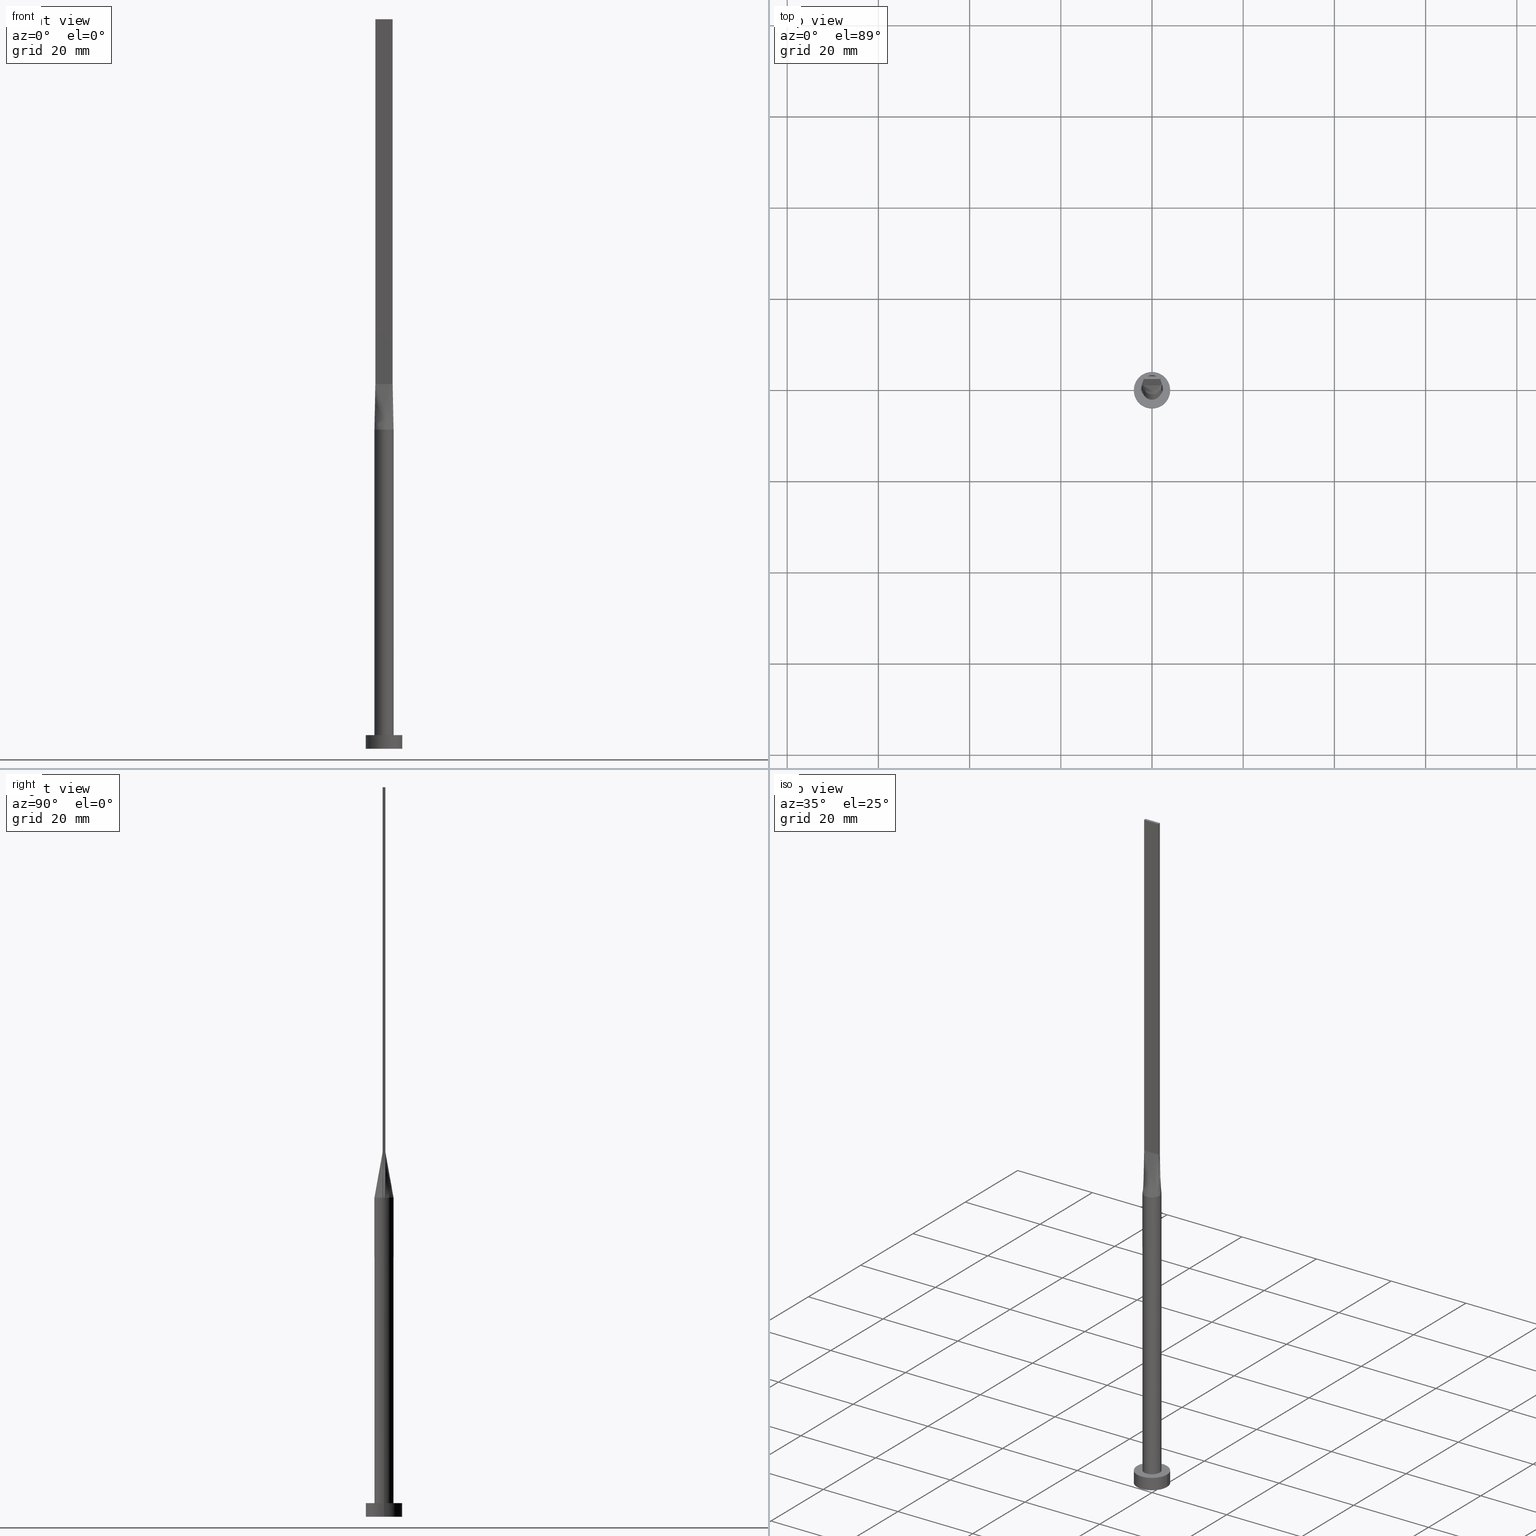
[diagram: canonical four-view strip — front | top / right | iso, engineering-drawing reading convention]
A machine part, canonical four-view strip (front | top / right | iso — engineering-drawing reading convention). The complete STEP part file that produces these views, byte-faithful:
ISO-10303-21;
HEADER;
FILE_DESCRIPTION (( 'STEP AP203' ),
    '1' );
FILE_NAME ('afc1.STEP',
    '2026-02-12T09:04:50',
    ( '' ),
    ( '' ),
    'SwSTEP 2.0',
    'SolidWorks 2019',
    '' );
FILE_SCHEMA (( 'CONFIG_CONTROL_DESIGN' ));
ENDSEC;

DATA;
#1 = LOCAL_TIME ( 10, 4, 50.00000000000000000, #389 ) ;
#2 = CARTESIAN_POINT ( 'NONE',  ( 0.2990728642939452508, -2.100000000000000533, 70.00000000000002842 ) ) ;
#3 = EDGE_CURVE ( 'NONE', #276, #480, #293, .T. ) ;
#4 = CARTESIAN_POINT ( 'NONE',  ( -2.074302227191044956, 0.3275214042933224934, 70.00000000000000000 ) ) ;
#5 = CARTESIAN_POINT ( 'NONE',  ( 0.6333333333333335258, -0.2999999999999996003, 79.99999999999998579 ) ) ;
#6 = CARTESIAN_POINT ( 'NONE',  ( -1.692271541701912296, 1.268928319070362631, 70.00000000000001421 ) ) ;
#7 = DIRECTION ( 'NONE',  ( 0.000000000000000000, 0.000000000000000000, 1.000000000000000000 ) ) ;
#8 = CARTESIAN_POINT ( 'NONE',  ( 4.000000000000000000, 4.898587196589412829E-16, 3.000000000000000000 ) ) ;
#9 = CARTESIAN_POINT ( 'NONE',  ( -1.899999999999999689, 0.3000000000000002109, 80.00000000000000000 ) ) ;
#10 = PERSON_AND_ORGANIZATION ( #350, #429 ) ;
#11 = CC_DESIGN_APPROVAL ( #174, ( #273 ) ) ;
#12 = AXIS2_PLACEMENT_3D ( 'NONE', #478, #296, #492 ) ;
#13 = CARTESIAN_POINT ( 'NONE',  ( -2.047342767731585855, 0.4982646475365663519, 70.00000000000001421 ) ) ;
#14 = CC_DESIGN_PERSON_AND_ORGANIZATION_ASSIGNMENT ( #454, #511, ( #343 ) ) ;
#15 = PERSON_AND_ORGANIZATION_ROLE ( 'creator' ) ;
#16 = B_SPLINE_SURFACE_WITH_KNOTS ( 'NONE', 3, 1, ( 
 ( #383, #160 ),
 ( #341, #558 ),
 ( #164, #150 ),
 ( #252, #345 ),
 ( #81, #449 ),
 ( #545, #86 ),
 ( #177, #136 ),
 ( #407, #395 ),
 ( #221, #498 ),
 ( #2, #500 ),
 ( #503, #355 ),
 ( #507, #5 ),
 ( #89, #580 ),
 ( #401, #315 ),
 ( #265, #260 ),
 ( #543, #443 ),
 ( #452, #219 ),
 ( #92, #47 ) ),
 .UNSPECIFIED., .F., .F., .F.,
 ( 4, 2, 2, 2, 2, 2, 2, 2, 4 ),
 ( 2, 2 ),
 ( 0.000000000000000000, 0.1249999999999999445, 0.2499999999999999445, 0.3749999999999999445, 0.5000000000000000000, 0.6249999999999998890, 0.7499999999999998890, 0.8749999999999997780, 1.000000000000000000 ),
 ( 0.000000000000000000, 1.000000000000000000 ),
 .UNSPECIFIED. ) ;
#17 = CARTESIAN_POINT ( 'NONE',  ( -2.074302227191044956, -0.3275214042933223824, 70.00000000000000000 ) ) ;
#18 =( LENGTH_UNIT ( ) NAMED_UNIT ( * ) SI_UNIT ( .MILLI., .METRE. ) );
#19 = PERSON_AND_ORGANIZATION ( #350, #429 ) ;
#20 = DIRECTION ( 'NONE',  ( -0.01742750958084848464, 0.002751712039081373896, 0.9998443428807622935 ) ) ;
#21 = ORIENTED_EDGE ( 'NONE', *, *, #145, .F. ) ;
#22 = CALENDAR_DATE ( 2026, 12, 2 ) ;
#23 = VERTEX_POINT ( 'NONE', #35 ) ;
#24 = ADVANCED_FACE ( 'NONE', ( #203 ), #80, .F. ) ;
#25 = CARTESIAN_POINT ( 'NONE',  ( -1.899999999999999689, 0.3000000000000002109, 160.0000000000000000 ) ) ;
#26 = AXIS2_PLACEMENT_3D ( 'NONE', #268, #51, #227 ) ;
#27 = PERSON_AND_ORGANIZATION ( #350, #429 ) ;
#28 = DIRECTION ( 'NONE',  ( 0.000000000000000000, 0.000000000000000000, 1.000000000000000000 ) ) ;
#29 = ORIENTED_EDGE ( 'NONE', *, *, #348, .F. ) ;
#30 = CARTESIAN_POINT ( 'NONE',  ( 0.000000000000000000, 0.000000000000000000, 3.000000000000000000 ) ) ;
#31 = EDGE_LOOP ( 'NONE', ( #385, #121, #21, #469 ) ) ;
#32 = LINE ( 'NONE', #72, #205 ) ;
#33 = ORIENTED_EDGE ( 'NONE', *, *, #217, .T. ) ;
#34 = VECTOR ( 'NONE', #456, 1000.000000000000000 ) ;
#35 = CARTESIAN_POINT ( 'NONE',  ( 2.074471112824316510, 0.3275477247839024275, 70.00000000000000000 ) ) ;
#36 = CARTESIAN_POINT ( 'NONE',  ( 0.6333333333333336368, 0.3000000000000001554, 79.99999999999998579 ) ) ;
#37 = ORIENTED_EDGE ( 'NONE', *, *, #457, .F. ) ;
#38 = CARTESIAN_POINT ( 'NONE',  ( 1.899999999999999689, 0.3000000000000002109, 160.0000000000000000 ) ) ;
#39 = ORIENTED_EDGE ( 'NONE', *, *, #202, .T. ) ;
#40 = DIRECTION ( 'NONE',  ( -0.01742750958084839444, -0.002751712039081324456, -0.9998443428807622935 ) ) ;
#41 = CC_DESIGN_PERSON_AND_ORGANIZATION_ASSIGNMENT ( #19, #187, ( #198 ) ) ;
#42 = FACE_OUTER_BOUND ( 'NONE', #534, .T. ) ;
#43 = VECTOR ( 'NONE', #45, 1000.000000000000000 ) ;
#44 = VERTEX_POINT ( 'NONE', #382 ) ;
#45 = DIRECTION ( 'NONE',  ( -0.000000000000000000, -0.000000000000000000, -1.000000000000000000 ) ) ;
#46 = CARTESIAN_POINT ( 'NONE',  ( 2.099842767731585624, 0.1098417832277423373, 70.00000000000000000 ) ) ;
#47 = CARTESIAN_POINT ( 'NONE',  ( 1.899999999999999023, -0.2999999999999997669, 80.00000000000000000 ) ) ;
#48 = ADVANCED_FACE ( 'NONE', ( #390 ), #287, .T. ) ;
#49 = CYLINDRICAL_SURFACE ( 'NONE', #439, 2.100000000000000089 ) ;
#50 = FACE_OUTER_BOUND ( 'NONE', #104, .T. ) ;
#51 = DIRECTION ( 'NONE',  ( 0.000000000000000000, 0.000000000000000000, 1.000000000000000000 ) ) ;
#52 = CARTESIAN_POINT ( 'NONE',  ( -1.819451111325472326, 1.069832718648841885, 70.00000000000001421 ) ) ;
#53 = APPROVAL_DATE_TIME ( #451, #174 ) ;
#54 = CARTESIAN_POINT ( 'NONE',  ( 0.000000000000000000, 0.000000000000000000, 3.000000000000000000 ) ) ;
#55 = EDGE_CURVE ( 'NONE', #118, #44, #514, .T. ) ;
#56 = CARTESIAN_POINT ( 'NONE',  ( -0.5970064165420507774, 2.033566071616263127, 70.00000000000000000 ) ) ;
#57 = CARTESIAN_POINT ( 'NONE',  ( 0.000000000000000000, 0.000000000000000000, 3.000000000000000000 ) ) ;
#58 = ORIENTED_EDGE ( 'NONE', *, *, #61, .T. ) ;
#59 = CARTESIAN_POINT ( 'NONE',  ( -2.074302227191044956, 0.3275214042933229375, 70.00000000000000000 ) ) ;
#60 = PERSON_AND_ORGANIZATION_ROLE ( 'classification_officer' ) ;
#61 = EDGE_CURVE ( 'NONE', #188, #44, #272, .T. ) ;
#62 = ORIENTED_EDGE ( 'NONE', *, *, #387, .T. ) ;
#63 = CARTESIAN_POINT ( 'NONE',  ( 0.000000000000000000, 0.000000000000000000, 70.00000000000000000 ) ) ;
#64 = DIRECTION ( 'NONE',  ( 0.000000000000000000, 0.000000000000000000, 1.000000000000000000 ) ) ;
#65 = EDGE_LOOP ( 'NONE', ( #368, #375, #144, #58 ) ) ;
#66 = DIRECTION ( 'NONE',  ( 0.000000000000000000, 0.000000000000000000, 1.000000000000000000 ) ) ;
#67 = VECTOR ( 'NONE', #20, 1000.000000000000114 ) ;
#68 = CARTESIAN_POINT ( 'NONE',  ( 1.899999999999999689, 0.3000000000000002109, 80.00000000000000000 ) ) ;
#69 = PERSON_AND_ORGANIZATION ( #350, #429 ) ;
#70 = ORIENTED_EDGE ( 'NONE', *, *, #283, .F. ) ;
#71 = APPROVAL ( #151, 'NEUR�EN�' ) ;
#72 = CARTESIAN_POINT ( 'NONE',  ( 1.899999999999999689, 0.3000000000000002109, 160.0000000000000000 ) ) ;
#73 = DATE_AND_TIME ( #213, #1 ) ;
#74 = VERTEX_POINT ( 'NONE', #274 ) ;
#75 = LOCAL_TIME ( 10, 4, 50.00000000000000000, #364 ) ;
#76 = ORIENTED_EDGE ( 'NONE', *, *, #414, .F. ) ;
#77 = CARTESIAN_POINT ( 'NONE',  ( -1.899999999999999689, 0.3000000000000002109, 160.0000000000000000 ) ) ;
#78 = CIRCLE ( 'NONE', #402, 4.000000000000000000 ) ;
#79 = ADVANCED_FACE ( 'NONE', ( #50 ), #472, .T. ) ;
#80 = PLANE ( 'NONE',  #12 ) ;
#81 = CARTESIAN_POINT ( 'NONE',  ( -1.692271541701912296, -1.268928319070361965, 70.00000000000001421 ) ) ;
#82 = ORIENTED_EDGE ( 'NONE', *, *, #202, .F. ) ;
#83 = CARTESIAN_POINT ( 'NONE',  ( -2.099921383865792635, -5.254633567926592411E-16, 70.00000000000000000 ) ) ;
#84 = CARTESIAN_POINT ( 'NONE',  ( 1.996565546919327527, 0.6845950695482651005, 70.00000000000001421 ) ) ;
#85 = CARTESIAN_POINT ( 'NONE',  ( 2.099842767731585624, -0.1098417832277428230, 70.00000000000000000 ) ) ;
#86 = CARTESIAN_POINT ( 'NONE',  ( -0.7916666666666660745, -0.2999999999999995448, 79.99999999999998579 ) ) ;
#87 = CARTESIAN_POINT ( 'NONE',  ( 1.342614810400549086, 1.634425746458369799, 70.00000000000001421 ) ) ;
#88 = CARTESIAN_POINT ( 'NONE',  ( 0.000000000000000000, 0.000000000000000000, 0.000000000000000000 ) ) ;
#89 = CARTESIAN_POINT ( 'NONE',  ( 1.342614810400548864, -1.634425746458370021, 70.00000000000002842 ) ) ;
#90 = DIRECTION ( 'NONE',  ( 0.000000000000000000, 0.000000000000000000, 1.000000000000000000 ) ) ;
#91 = DIRECTION ( 'NONE',  ( 1.000000000000000000, 0.000000000000000000, 0.000000000000000000 ) ) ;
#92 = CARTESIAN_POINT ( 'NONE',  ( 2.074302227191044956, -0.3275214042933231595, 70.00000000000000000 ) ) ;
#93 = AXIS2_PLACEMENT_3D ( 'NONE', #54, #64, #522 ) ;
#94 = FACE_OUTER_BOUND ( 'NONE', #461, .T. ) ;
#95 = CARTESIAN_POINT ( 'NONE',  ( -1.899999999999999689, 0.3000000000000002109, 80.00000000000000000 ) ) ;
#96 = COORDINATED_UNIVERSAL_TIME_OFFSET ( 1, 0, .AHEAD. ) ;
#97 = FACE_BOUND ( 'NONE', #560, .T. ) ;
#98 = APPROVAL ( #336, 'NEUR�EN�' ) ;
#99 = APPLICATION_CONTEXT ( 'configuration controlled 3d designs of mechanical parts and assemblies' ) ;
#100 = CARTESIAN_POINT ( 'NONE',  ( 1.692271541701912296, 1.268928319070362187, 70.00000000000000000 ) ) ;
#101 =( NAMED_UNIT ( * ) PLANE_ANGLE_UNIT ( ) SI_UNIT ( $, .RADIAN. ) );
#102 = CYLINDRICAL_SURFACE ( 'NONE', #458, 4.000000000000000000 ) ;
#103 = CARTESIAN_POINT ( 'NONE',  ( 0.000000000000000000, 0.000000000000000000, 0.000000000000000000 ) ) ;
#104 = EDGE_LOOP ( 'NONE', ( #436, #153, #82, #433, #523 ) ) ;
#105 = CLOSED_SHELL ( 'NONE', ( #369, #179, #524, #361, #537, #559, #321, #48, #79, #426, #501, #224, #405, #24, #576 ) ) ;
#106 = CARTESIAN_POINT ( 'NONE',  ( 2.074471112824316510, 0.3275477247839024275, 70.00000000000000000 ) ) ;
#107 = EDGE_CURVE ( 'NONE', #23, #489, #223, .T. ) ;
#108 = ORIENTED_EDGE ( 'NONE', *, *, #234, .F. ) ;
#109 = CARTESIAN_POINT ( 'NONE',  ( -1.987151113595522656, -0.3137607021466609636, 75.00000000000001421 ) ) ;
#110 = CALENDAR_DATE ( 2026, 12, 2 ) ;
#111 = VERTEX_POINT ( 'NONE', #225 ) ;
#112 = CARTESIAN_POINT ( 'NONE',  ( 0.000000000000000000, 0.000000000000000000, 70.00000000000000000 ) ) ;
#113 = LINE ( 'NONE', #152, #185 ) ;
#114 = B_SPLINE_SURFACE_WITH_KNOTS ( 'NONE', 3, 1, ( 
 ( #294, #68 ),
 ( #495, #216 ),
 ( #84, #573 ),
 ( #353, #262 ),
 ( #394, #220 ),
 ( #87, #261 ),
 ( #173, #36 ),
 ( #206, #347 ),
 ( #384, #569 ),
 ( #532, #528 ),
 ( #128, #396 ),
 ( #342, #299 ),
 ( #308, #491 ),
 ( #581, #303 ),
 ( #485, #211 ),
 ( #257, #446 ),
 ( #222, #400 ),
 ( #4, #95 ) ),
 .UNSPECIFIED., .F., .F., .F.,
 ( 4, 2, 2, 2, 2, 2, 2, 2, 4 ),
 ( 2, 2 ),
 ( 0.000000000000000000, 0.1249999999999999722, 0.2500000000000000000, 0.3750000000000000000, 0.5000000000000000000, 0.6250000000000000000, 0.7500000000000000000, 0.8750000000000000000, 1.000000000000000000 ),
 ( 0.000000000000000000, 1.000000000000000000 ),
 .UNSPECIFIED. ) ;
#115 = VERTEX_POINT ( 'NONE', #230 ) ;
#116 = VECTOR ( 'NONE', #183, 1000.000000000000000 ) ;
#117 = DIRECTION ( 'NONE',  ( 1.000000000000000000, 0.000000000000000000, 0.000000000000000000 ) ) ;
#118 = VERTEX_POINT ( 'NONE', #363 ) ;
#119 = EDGE_CURVE ( 'NONE', #489, #351, #403, .T. ) ;
#120 = DIRECTION ( 'NONE',  ( -0.000000000000000000, -0.000000000000000000, -1.000000000000000000 ) ) ;
#121 = ORIENTED_EDGE ( 'NONE', *, *, #61, .F. ) ;
#122 = FACE_OUTER_BOUND ( 'NONE', #377, .T. ) ;
#123 = CC_DESIGN_SECURITY_CLASSIFICATION ( #139, ( #198 ) ) ;
#124 = ORIENTED_EDGE ( 'NONE', *, *, #125, .T. ) ;
#125 = EDGE_CURVE ( 'NONE', #351, #427, #357, .T. ) ;
#126 = VECTOR ( 'NONE', #285, 1000.000000000000000 ) ;
#127 = DIRECTION ( 'NONE',  ( 1.000000000000000000, 0.000000000000000000, 0.000000000000000000 ) ) ;
#128 = CARTESIAN_POINT ( 'NONE',  ( -0.5970064165420507774, 2.033566071616263127, 70.00000000000000000 ) ) ;
#129 = CARTESIAN_POINT ( 'NONE',  ( -1.899999999999999911, -0.2999999999999994893, 80.00000000000000000 ) ) ;
#130 = CYLINDRICAL_SURFACE ( 'NONE', #297, 4.000000000000000000 ) ;
#131 = CARTESIAN_POINT ( 'NONE',  ( 1.899999999999999689, -0.1999999999999998168, 79.99999999999998579 ) ) ;
#132 = APPROVAL_PERSON_ORGANIZATION ( #552, #71, #142 ) ;
#133 = AXIS2_PLACEMENT_3D ( 'NONE', #228, #90, #406 ) ;
#134 = DIRECTION ( 'NONE',  ( 1.000000000000000000, 0.000000000000000000, 0.000000000000000000 ) ) ;
#135 = VECTOR ( 'NONE', #388, 1000.000000000000000 ) ;
#136 = CARTESIAN_POINT ( 'NONE',  ( -0.6333333333333327486, -0.2999999999999996003, 79.99999999999998579 ) ) ;
#137 = CARTESIAN_POINT ( 'NONE',  ( 1.987151113595522212, 0.3137607021466614077, 75.00000000000001421 ) ) ;
#138 = EDGE_CURVE ( 'NONE', #23, #459, #277, .T. ) ;
#139 = SECURITY_CLASSIFICATION ( '', '', #240 ) ;
#140 = CARTESIAN_POINT ( 'NONE',  ( -2.099842767731585624, -0.1098417832277421985, 70.00000000000000000 ) ) ;
#141 = CARTESIAN_POINT ( 'NONE',  ( -2.099842767731585624, 0.1098417832277427397, 70.00000000000000000 ) ) ;
#142 = APPROVAL_ROLE ( '' ) ;
#143 = CALENDAR_DATE ( 2026, 12, 2 ) ;
#144 = ORIENTED_EDGE ( 'NONE', *, *, #156, .F. ) ;
#145 = EDGE_CURVE ( 'NONE', #111, #188, #232, .T. ) ;
#146 = CARTESIAN_POINT ( 'NONE',  ( -1.987151113595522212, 0.3137607021466613522, 75.00000000000001421 ) ) ;
#147 = DIRECTION ( 'NONE',  ( 1.000000000000000000, 0.000000000000000000, -0.000000000000000000 ) ) ;
#148 = ORIENTED_EDGE ( 'NONE', *, *, #314, .F. ) ;
#149 = VECTOR ( 'NONE', #441, 1000.000000000000000 ) ;
#150 = CARTESIAN_POINT ( 'NONE',  ( -1.583333333333333037, -0.2999999999999994893, 80.00000000000000000 ) ) ;
#151 = APPROVAL_STATUS ( 'not_yet_approved' ) ;
#152 = CARTESIAN_POINT ( 'NONE',  ( -1.899999999999999911, -0.2999999999999994893, 160.0000000000000000 ) ) ;
#153 = ORIENTED_EDGE ( 'NONE', *, *, #161, .T. ) ;
#154 = PLANE ( 'NONE',  #412 ) ;
#155 = CARTESIAN_POINT ( 'NONE',  ( 0.000000000000000000, 0.000000000000000000, 3.000000000000000000 ) ) ;
#156 = EDGE_CURVE ( 'NONE', #188, #289, #269, .T. ) ;
#157 = ORIENTED_EDGE ( 'NONE', *, *, #493, .F. ) ;
#158 = CARTESIAN_POINT ( 'NONE',  ( 2.074302227191044956, 0.3275214042933226599, 70.00000000000000000 ) ) ;
#159 = ORIENTED_EDGE ( 'NONE', *, *, #305, .T. ) ;
#160 = CARTESIAN_POINT ( 'NONE',  ( -1.899999999999999911, -0.2999999999999994893, 80.00000000000000000 ) ) ;
#161 = EDGE_CURVE ( 'NONE', #276, #207, #372, .T. ) ;
#162 = ORIENTED_EDGE ( 'NONE', *, *, #55, .F. ) ;
#163 = ORIENTED_EDGE ( 'NONE', *, *, #457, .T. ) ;
#164 = CARTESIAN_POINT ( 'NONE',  ( -1.996565546919327971, -0.6845950695482642123, 70.00000000000000000 ) ) ;
#165 = CARTESIAN_POINT ( 'NONE',  ( -1.899999999999999689, 0.3000000000000002109, 160.0000000000000000 ) ) ;
#166 = SHAPE_DEFINITION_REPRESENTATION ( #197, #404 ) ;
#167 = ORIENTED_EDGE ( 'NONE', *, *, #305, .F. ) ;
#168 = DIRECTION ( 'NONE',  ( 0.000000000000000000, 0.000000000000000000, 1.000000000000000000 ) ) ;
#169 = CARTESIAN_POINT ( 'NONE',  ( 0.000000000000000000, 0.000000000000000000, 70.00000000000000000 ) ) ;
#170 = PLANE ( 'NONE',  #467 ) ;
#171 = CARTESIAN_POINT ( 'NONE',  ( 2.074302227191044956, -0.3275214042933231595, 70.00000000000000000 ) ) ;
#172 = DIRECTION ( 'NONE',  ( 1.000000000000000000, -7.993605777301127091E-15, 0.000000000000000000 ) ) ;
#173 = CARTESIAN_POINT ( 'NONE',  ( 1.119115561862284558, 1.799829988698611105, 69.99999999999998579 ) ) ;
#174 = APPROVAL ( #506, 'NEUR�EN�' ) ;
#175 = FACE_OUTER_BOUND ( 'NONE', #527, .T. ) ;
#176 = CIRCLE ( 'NONE', #200, 2.100000000000000089 ) ;
#177 = CARTESIAN_POINT ( 'NONE',  ( -1.119115561862284558, -1.799829988698610439, 69.99999999999998579 ) ) ;
#178 = APPLICATION_CONTEXT ( 'configuration controlled 3d designs of mechanical parts and assemblies' ) ;
#179 = ADVANCED_FACE ( 'NONE', ( #94 ), #102, .T. ) ;
#180 = CARTESIAN_POINT ( 'NONE',  ( -1.119115561862284558, 1.799829988698611327, 69.99999999999998579 ) ) ;
#181 = DIRECTION ( 'NONE',  ( -1.000000000000000000, 0.000000000000000000, 0.000000000000000000 ) ) ;
#182 = CARTESIAN_POINT ( 'NONE',  ( -1.899999999999999689, 0.3000000000000002109, 80.00000000000000000 ) ) ;
#183 = DIRECTION ( 'NONE',  ( -0.000000000000000000, -0.000000000000000000, -1.000000000000000000 ) ) ;
#184 = CARTESIAN_POINT ( 'NONE',  ( -2.091329254218072364, -0.2196835664554846468, 70.00000000000000000 ) ) ;
#185 = VECTOR ( 'NONE', #339, 1000.000000000000000 ) ;
#186 = CARTESIAN_POINT ( 'NONE',  ( 1.342614810400549086, 1.634425746458369799, 70.00000000000001421 ) ) ;
#187 = PERSON_AND_ORGANIZATION_ROLE ( 'creator' ) ;
#188 = VERTEX_POINT ( 'NONE', #462 ) ;
#189 = DATE_TIME_ROLE ( 'creation_date' ) ;
#190 = EDGE_LOOP ( 'NONE', ( #163, #284, #393, #483 ) ) ;
#191 = FACE_OUTER_BOUND ( 'NONE', #530, .T. ) ;
#192 = ORIENTED_EDGE ( 'NONE', *, *, #234, .T. ) ;
#193 = EDGE_CURVE ( 'NONE', #480, #214, #468, .T. ) ;
#194 = DIRECTION ( 'NONE',  ( 0.000000000000000000, 0.000000000000000000, 1.000000000000000000 ) ) ;
#195 = ORIENTED_EDGE ( 'NONE', *, *, #145, .T. ) ;
#196 = LINE ( 'NONE', #292, #542 ) ;
#197 = PRODUCT_DEFINITION_SHAPE ( 'NONE', 'NONE',  #273 ) ;
#198 = PRODUCT_DEFINITION_FORMATION_WITH_SPECIFIED_SOURCE ( 'LIBOVOLN�', '', #343, .NOT_KNOWN. ) ;
#199 = ORIENTED_EDGE ( 'NONE', *, *, #328, .F. ) ;
#200 = AXIS2_PLACEMENT_3D ( 'NONE', #112, #168, #386 ) ;
#201 = DIRECTION ( 'NONE',  ( 1.000000000000000000, 0.000000000000000000, 0.000000000000000000 ) ) ;
#202 = EDGE_CURVE ( 'NONE', #427, #207, #253, .T. ) ;
#203 = FACE_OUTER_BOUND ( 'NONE', #65, .T. ) ;
#204 = DIRECTION ( 'NONE',  ( 1.000000000000000000, 0.000000000000000000, 0.000000000000000000 ) ) ;
#205 = VECTOR ( 'NONE', #423, 1000.000000000000000 ) ;
#206 = CARTESIAN_POINT ( 'NONE',  ( 0.5970064165420508884, 2.033566071616262683, 69.99999999999998579 ) ) ;
#207 = VERTEX_POINT ( 'NONE', #422 ) ;
#208 = CARTESIAN_POINT ( 'NONE',  ( -4.000000000000000000, 0.000000000000000000, 3.000000000000000000 ) ) ;
#209 = CARTESIAN_POINT ( 'NONE',  ( -1.899999999999999689, 0.3000000000000002109, 80.00000000000000000 ) ) ;
#210 = CARTESIAN_POINT ( 'NONE',  ( 1.899999999999999911, -0.2999999999999997669, 80.00000000000000000 ) ) ;
#211 = CARTESIAN_POINT ( 'NONE',  ( -1.266666666666666163, 0.3000000000000002109, 79.99999999999998579 ) ) ;
#212 = DIRECTION ( 'NONE',  ( 0.000000000000000000, -1.000000000000000000, 0.000000000000000000 ) ) ;
#213 = CALENDAR_DATE ( 2026, 12, 2 ) ;
#214 = VERTEX_POINT ( 'NONE', #391 ) ;
#215 = DIRECTION ( 'NONE',  ( 1.000000000000000000, 0.000000000000000000, 0.000000000000000000 ) ) ;
#216 = CARTESIAN_POINT ( 'NONE',  ( 1.741666666666666474, 0.3000000000000002109, 79.99999999999998579 ) ) ;
#217 = EDGE_CURVE ( 'NONE', #74, #214, #349, .T. ) ;
#218 = CARTESIAN_POINT ( 'NONE',  ( 1.899999999999999467, 0.1000000000000001166, 79.99999999999998579 ) ) ;
#219 = CARTESIAN_POINT ( 'NONE',  ( 1.741666666666665586, -0.2999999999999997113, 79.99999999999998579 ) ) ;
#220 = CARTESIAN_POINT ( 'NONE',  ( 1.108333333333333393, 0.3000000000000001554, 79.99999999999998579 ) ) ;
#221 = CARTESIAN_POINT ( 'NONE',  ( -0.2990728642939464721, -2.100000000000000977, 70.00000000000004263 ) ) ;
#222 = CARTESIAN_POINT ( 'NONE',  ( -2.047342767731585855, 0.4982646475365663519, 70.00000000000001421 ) ) ;
#223 = B_SPLINE_CURVE_WITH_KNOTS ( 'NONE', 3,
 ( #106, #319, #508, #237, #100, #186, #453, #411, #408, #271, #56, #180, #324, #6, #52, #513, #13, #551 ),
 .UNSPECIFIED., .F., .F.,
 ( 4, 2, 2, 2, 2, 2, 2, 2, 4 ),
 ( 0.000000000000000000, 0.1249999999999999722, 0.2500000000000000000, 0.3750000000000000000, 0.5000000000000000000, 0.6250000000000000000, 0.7500000000000000000, 0.8750000000000000000, 1.000000000000000000 ),
 .UNSPECIFIED. ) ;
#224 = ADVANCED_FACE ( 'NONE', ( #122 ), #434, .F. ) ;
#225 = CARTESIAN_POINT ( 'NONE',  ( -1.899999999999999911, -0.2999999999999994893, 160.0000000000000000 ) ) ;
#226 = CARTESIAN_POINT ( 'NONE',  ( 0.000000000000000000, 0.000000000000000000, 160.0000000000000000 ) ) ;
#227 = DIRECTION ( 'NONE',  ( 1.000000000000000000, 0.000000000000000000, 0.000000000000000000 ) ) ;
#228 = CARTESIAN_POINT ( 'NONE',  ( 0.000000000000000000, 0.000000000000000000, 70.00000000000000000 ) ) ;
#229 = DIRECTION ( 'NONE',  ( -0.000000000000000000, -0.000000000000000000, -1.000000000000000000 ) ) ;
#230 = CARTESIAN_POINT ( 'NONE',  ( 4.000000000000000000, 4.898587196589412829E-16, 0.000000000000000000 ) ) ;
#231 =( NAMED_UNIT ( * ) SI_UNIT ( $, .STERADIAN. ) SOLID_ANGLE_UNIT ( ) );
#232 = LINE ( 'NONE', #417, #34 ) ;
#233 = DATE_AND_TIME ( #110, #563 ) ;
#234 = EDGE_CURVE ( 'NONE', #74, #23, #362, .T. ) ;
#235 = AXIS2_PLACEMENT_3D ( 'NONE', #241, #28, #117 ) ;
#236 = VERTEX_POINT ( 'NONE', #579 ) ;
#237 = CARTESIAN_POINT ( 'NONE',  ( 1.819451111325471215, 1.069832718648841885, 69.99999999999998579 ) ) ;
#238 = ORIENTED_EDGE ( 'NONE', *, *, #193, .T. ) ;
#239 = CARTESIAN_POINT ( 'NONE',  ( 0.000000000000000000, 0.000000000000000000, 3.000000000000000000 ) ) ;
#240 = SECURITY_CLASSIFICATION_LEVEL ( 'unclassified' ) ;
#241 = CARTESIAN_POINT ( 'NONE',  ( 0.000000000000000000, 0.000000000000000000, 70.00000000000000000 ) ) ;
#242 = EDGE_CURVE ( 'NONE', #289, #475, #575, .T. ) ;
#243 = LINE ( 'NONE', #208, #149 ) ;
#244 = ORIENTED_EDGE ( 'NONE', *, *, #107, .F. ) ;
#245 = APPROVAL_DATE_TIME ( #73, #98 ) ;
#246 = ORIENTED_EDGE ( 'NONE', *, *, #470, .F. ) ;
#247 = CARTESIAN_POINT ( 'NONE',  ( 4.000000000000000000, 4.898587196589412829E-16, 3.000000000000000000 ) ) ;
#248 = CC_DESIGN_DATE_AND_TIME_ASSIGNMENT ( #278, #189, ( #273 ) ) ;
#249 = CC_DESIGN_APPROVAL ( #71, ( #198 ) ) ;
#250 = ORIENTED_EDGE ( 'NONE', *, *, #255, .T. ) ;
#251 = CARTESIAN_POINT ( 'NONE',  ( 1.899999999999999467, 0.2000000000000001499, 79.99999999999998579 ) ) ;
#252 = CARTESIAN_POINT ( 'NONE',  ( -1.819451111325472548, -1.069832718648841663, 69.99999999999998579 ) ) ;
#253 = LINE ( 'NONE', #109, #290 ) ;
#254 = DIRECTION ( 'NONE',  ( 0.000000000000000000, 0.000000000000000000, 1.000000000000000000 ) ) ;
#255 = EDGE_CURVE ( 'NONE', #475, #111, #572, .T. ) ;
#256 = AXIS2_PLACEMENT_3D ( 'NONE', #226, #270, #147 ) ;
#257 = CARTESIAN_POINT ( 'NONE',  ( -1.996565546919327527, 0.6845950695482648785, 70.00000000000001421 ) ) ;
#258 = DIRECTION ( 'NONE',  ( -1.000000000000000000, 0.000000000000000000, 0.000000000000000000 ) ) ;
#259 = CARTESIAN_POINT ( 'NONE',  ( 2.091329254218072364, -0.2196835664554854239, 70.00000000000000000 ) ) ;
#260 = CARTESIAN_POINT ( 'NONE',  ( 1.266666666666665941, -0.2999999999999997113, 79.99999999999998579 ) ) ;
#261 = CARTESIAN_POINT ( 'NONE',  ( 0.7916666666666668517, 0.3000000000000001554, 79.99999999999998579 ) ) ;
#262 = CARTESIAN_POINT ( 'NONE',  ( 1.266666666666666829, 0.3000000000000002109, 79.99999999999998579 ) ) ;
#263 = DIRECTION ( 'NONE',  ( 0.000000000000000000, 0.000000000000000000, 1.000000000000000000 ) ) ;
#264 = EDGE_CURVE ( 'NONE', #207, #118, #176, .T. ) ;
#265 = CARTESIAN_POINT ( 'NONE',  ( 1.819451111325472104, -1.069832718648842107, 70.00000000000000000 ) ) ;
#266 = CARTESIAN_POINT ( 'NONE',  ( -1.899999999999999911, -0.2999999999999994338, 80.00000000000000000 ) ) ;
#267 = CIRCLE ( 'NONE', #26, 4.000000000000000000 ) ;
#268 = CARTESIAN_POINT ( 'NONE',  ( 0.000000000000000000, 0.000000000000000000, 3.000000000000000000 ) ) ;
#269 = LINE ( 'NONE', #510, #494 ) ;
#270 = DIRECTION ( 'NONE',  ( 0.000000000000000000, 0.000000000000000000, 1.000000000000000000 ) ) ;
#271 = CARTESIAN_POINT ( 'NONE',  ( -0.2990728642939458615, 2.100000000000000089, 70.00000000000001421 ) ) ;
#272 = LINE ( 'NONE', #275, #116 ) ;
#273 = PRODUCT_DEFINITION ( 'NEZN�M�', '', #198, #487 ) ;
#274 = CARTESIAN_POINT ( 'NONE',  ( 2.099921383865792635, 5.174786140116233847E-16, 70.00000000000000000 ) ) ;
#275 = CARTESIAN_POINT ( 'NONE',  ( 1.899999999999999023, -0.2999999999999997669, 160.0000000000000000 ) ) ;
#276 = VERTEX_POINT ( 'NONE', #83 ) ;
#277 = LINE ( 'NONE', #137, #409 ) ;
#278 = DATE_AND_TIME ( #143, #75 ) ;
#279 = UNCERTAINTY_MEASURE_WITH_UNIT (LENGTH_MEASURE( 1.000000000000000082E-05 ), #18, 'distance_accuracy_value', 'NONE');
#280 = CARTESIAN_POINT ( 'NONE',  ( 1.987151113595522212, -0.3137607021466614632, 75.00000000000001421 ) ) ;
#281 = ORIENTED_EDGE ( 'NONE', *, *, #348, .T. ) ;
#282 = PERSON_AND_ORGANIZATION_ROLE ( 'design_supplier' ) ;
#283 = EDGE_CURVE ( 'NONE', #118, #74, #529, .T. ) ;
#284 = ORIENTED_EDGE ( 'NONE', *, *, #387, .F. ) ;
#285 = DIRECTION ( 'NONE',  ( -1.000000000000000000, 0.000000000000000000, 0.000000000000000000 ) ) ;
#286 = CYLINDRICAL_SURFACE ( 'NONE', #444, 2.100000000000000089 ) ;
#287 = B_SPLINE_SURFACE_WITH_KNOTS ( 'NONE', 3, 1, ( 
 ( #171, #210 ),
 ( #259, #131 ),
 ( #85, #442 ),
 ( #46, #218 ),
 ( #565, #251 ),
 ( #158, #365 ) ),
 .UNSPECIFIED., .F., .F., .F.,
 ( 4, 2, 4 ),
 ( 2, 2 ),
 ( 0.000000000000000000, 0.5000000000000000000, 1.000000000000000000 ),
 ( 0.000000000000000000, 1.000000000000000000 ),
 .UNSPECIFIED. ) ;
#288 = APPROVAL_PERSON_ORGANIZATION ( #548, #174, #410 ) ;
#289 = VERTEX_POINT ( 'NONE', #484 ) ;
#290 = VECTOR ( 'NONE', #40, 1000.000000000000114 ) ;
#291 = CARTESIAN_POINT ( 'NONE',  ( 0.000000000000000000, 0.000000000000000000, 70.00000000000000000 ) ) ;
#292 = CARTESIAN_POINT ( 'NONE',  ( 1.899999999999999689, 0.3000000000000002109, 80.00000000000000000 ) ) ;
#293 = LINE ( 'NONE', #578, #318 ) ;
#294 = CARTESIAN_POINT ( 'NONE',  ( 2.074302227191044956, 0.3275214042933228820, 70.00000000000000000 ) ) ;
#295 = APPROVAL_PERSON_ORGANIZATION ( #69, #98, #482 ) ;
#296 = DIRECTION ( 'NONE',  ( -1.000000000000000000, 1.084202172485504434E-15, 0.000000000000000000 ) ) ;
#297 = AXIS2_PLACEMENT_3D ( 'NONE', #397, #309, #258 ) ;
#298 = ORIENTED_EDGE ( 'NONE', *, *, #328, .T. ) ;
#299 = CARTESIAN_POINT ( 'NONE',  ( -0.6333333333333326376, 0.3000000000000001554, 79.99999999999998579 ) ) ;
#300 = DIRECTION ( 'NONE',  ( -3.614007241618348278E-16, 1.000000000000000000, -0.000000000000000000 ) ) ;
#301 = ORIENTED_EDGE ( 'NONE', *, *, #255, .F. ) ;
#302 = CARTESIAN_POINT ( 'NONE',  ( 0.000000000000000000, 0.000000000000000000, 70.00000000000000000 ) ) ;
#303 = CARTESIAN_POINT ( 'NONE',  ( -1.108333333333332726, 0.3000000000000002109, 79.99999999999998579 ) ) ;
#304 = DIRECTION ( 'NONE',  ( 1.000000000000000000, -7.132909029509898176E-17, 0.000000000000000000 ) ) ;
#305 = EDGE_CURVE ( 'NONE', #236, #517, #243, .T. ) ;
#306 = EDGE_LOOP ( 'NONE', ( #464, #148 ) ) ;
#307 = DIRECTION ( 'NONE',  ( 1.000000000000000000, -3.614007241618350743E-16, 0.000000000000000000 ) ) ;
#308 = CARTESIAN_POINT ( 'NONE',  ( -1.342614810400549308, 1.634425746458370021, 70.00000000000002842 ) ) ;
#309 = DIRECTION ( 'NONE',  ( -0.000000000000000000, -0.000000000000000000, -1.000000000000000000 ) ) ;
#310 = ORIENTED_EDGE ( 'NONE', *, *, #314, .T. ) ;
#311 = DIRECTION ( 'NONE',  ( 1.000000000000000000, 0.000000000000000000, -0.000000000000000000 ) ) ;
#312 = AXIS2_PLACEMENT_3D ( 'NONE', #63, #490, #215 ) ;
#313 = CARTESIAN_POINT ( 'NONE',  ( -4.000000000000000000, 0.000000000000000000, 0.000000000000000000 ) ) ;
#314 = EDGE_CURVE ( 'NONE', #115, #517, #477, .T. ) ;
#315 = CARTESIAN_POINT ( 'NONE',  ( 1.108333333333332948, -0.2999999999999996558, 79.99999999999998579 ) ) ;
#316 =( GEOMETRIC_REPRESENTATION_CONTEXT ( 3 ) GLOBAL_UNCERTAINTY_ASSIGNED_CONTEXT ( ( #279 ) ) GLOBAL_UNIT_ASSIGNED_CONTEXT ( ( #18, #101, #231 ) ) REPRESENTATION_CONTEXT ( 'NONE', 'WORKASPACE' ) );
#317 = DIRECTION ( 'NONE',  ( 1.084202172485504434E-15, 1.000000000000000000, 0.000000000000000000 ) ) ;
#318 = VECTOR ( 'NONE', #120, 1000.000000000000000 ) ;
#319 = CARTESIAN_POINT ( 'NONE',  ( 2.047342767731584967, 0.4982646475365660188, 70.00000000000001421 ) ) ;
#320 = APPLICATION_PROTOCOL_DEFINITION ( 'international standard', 'config_control_design', 1994, #178 ) ;
#321 = ADVANCED_FACE ( 'NONE', ( #191 ), #16, .T. ) ;
#322 = CARTESIAN_POINT ( 'NONE',  ( -1.899999999999999689, 0.3000000000000002109, 80.00000000000000000 ) ) ;
#323 = ORIENTED_EDGE ( 'NONE', *, *, #138, .T. ) ;
#324 = CARTESIAN_POINT ( 'NONE',  ( -1.342614810400549308, 1.634425746458370021, 70.00000000000002842 ) ) ;
#325 = AXIS2_PLACEMENT_3D ( 'NONE', #88, #263, #311 ) ;
#326 = AXIS2_PLACEMENT_3D ( 'NONE', #302, #254, #172 ) ;
#327 = ORIENTED_EDGE ( 'NONE', *, *, #476, .F. ) ;
#328 = EDGE_CURVE ( 'NONE', #236, #419, #267, .T. ) ;
#329 = VECTOR ( 'NONE', #304, 1000.000000000000000 ) ;
#330 = ORIENTED_EDGE ( 'NONE', *, *, #107, .T. ) ;
#331 = LINE ( 'NONE', #474, #557 ) ;
#332 = ORIENTED_EDGE ( 'NONE', *, *, #3, .F. ) ;
#333 = CC_DESIGN_APPROVAL ( #98, ( #139 ) ) ;
#334 = ORIENTED_EDGE ( 'NONE', *, *, #379, .F. ) ;
#335 = VECTOR ( 'NONE', #549, 1000.000000000000114 ) ;
#336 = APPROVAL_STATUS ( 'not_yet_approved' ) ;
#337 = EDGE_LOOP ( 'NONE', ( #562, #192, #323, #425, #162 ) ) ;
#338 = PRODUCT_RELATED_PRODUCT_CATEGORY ( 'detail', '', ( #343 ) ) ;
#339 = DIRECTION ( 'NONE',  ( -0.000000000000000000, -0.000000000000000000, -1.000000000000000000 ) ) ;
#340 = EDGE_LOOP ( 'NONE', ( #108, #33, #519, #332, #76, #244 ) ) ;
#341 = CARTESIAN_POINT ( 'NONE',  ( -2.047342767731585411, -0.4982646475365654637, 70.00000000000000000 ) ) ;
#342 = CARTESIAN_POINT ( 'NONE',  ( -1.119115561862284558, 1.799829988698611327, 69.99999999999998579 ) ) ;
#343 = PRODUCT ( 'afc1', 'afc1', '', ( #415 ) ) ;
#344 = ORIENTED_EDGE ( 'NONE', *, *, #217, .F. ) ;
#345 = CARTESIAN_POINT ( 'NONE',  ( -1.266666666666666385, -0.2999999999999994893, 79.99999999999998579 ) ) ;
#346 = VECTOR ( 'NONE', #229, 1000.000000000000000 ) ;
#347 = CARTESIAN_POINT ( 'NONE',  ( 0.3166666666666671515, 0.3000000000000001554, 79.99999999999998579 ) ) ;
#348 = EDGE_CURVE ( 'NONE', #419, #115, #352, .T. ) ;
#349 = LINE ( 'NONE', #535, #43 ) ;
#350 = PERSON ( 'NEUR�EN�', 'NEUR�EN�', 'NEUR�EN�', ('NEUR�EN�'), ('NEUR�EN�'), ('NEUR�EN�') ) ;
#351 = VERTEX_POINT ( 'NONE', #182 ) ;
#352 = LINE ( 'NONE', #8, #346 ) ;
#353 = CARTESIAN_POINT ( 'NONE',  ( 1.819451111325471215, 1.069832718648841885, 69.99999999999998579 ) ) ;
#354 = FACE_OUTER_BOUND ( 'NONE', #306, .T. ) ;
#355 = CARTESIAN_POINT ( 'NONE',  ( 0.3166666666666672625, -0.2999999999999996003, 79.99999999999998579 ) ) ;
#356 = CIRCLE ( 'NONE', #431, 2.100000000000000089 ) ;
#357 = LINE ( 'NONE', #322, #392 ) ;
#358 = FACE_OUTER_BOUND ( 'NONE', #380, .T. ) ;
#359 = LOCAL_TIME ( 10, 4, 50.00000000000000000, #418 ) ;
#360 = CARTESIAN_POINT ( 'NONE',  ( -1.899999999999999689, -0.1999999999999994837, 79.99999999999998579 ) ) ;
#361 = ADVANCED_FACE ( 'NONE', ( #97, #175 ), #539, .T. ) ;
#362 = CIRCLE ( 'NONE', #312, 2.100000000000000089 ) ;
#363 = CARTESIAN_POINT ( 'NONE',  ( 2.074492141291045755, -0.3275508996892426139, 70.00000000000000000 ) ) ;
#364 = COORDINATED_UNIVERSAL_TIME_OFFSET ( 1, 0, .AHEAD. ) ;
#365 = CARTESIAN_POINT ( 'NONE',  ( 1.899999999999999689, 0.3000000000000002109, 80.00000000000000000 ) ) ;
#366 = CARTESIAN_POINT ( 'NONE',  ( -1.899999999999999467, 0.1000000000000002831, 79.99999999999998579 ) ) ;
#367 = PERSON_AND_ORGANIZATION ( #350, #429 ) ;
#368 = ORIENTED_EDGE ( 'NONE', *, *, #432, .T. ) ;
#369 = ADVANCED_FACE ( 'NONE', ( #561 ), #286, .T. ) ;
#370 = AXIS2_PLACEMENT_3D ( 'NONE', #103, #7, #91 ) ;
#371 = DIRECTION ( 'NONE',  ( 7.132909029509899409E-17, 1.000000000000000000, -0.000000000000000000 ) ) ;
#372 = CIRCLE ( 'NONE', #133, 2.100000000000000089 ) ;
#373 = EDGE_LOOP ( 'NONE', ( #29, #199, #159, #521 ) ) ;
#374 = DIRECTION ( 'NONE',  ( -1.000000000000000000, 0.000000000000000000, 0.000000000000000000 ) ) ;
#375 = ORIENTED_EDGE ( 'NONE', *, *, #398, .F. ) ;
#376 = DIRECTION ( 'NONE',  ( 1.000000000000000000, 0.000000000000000000, 0.000000000000000000 ) ) ;
#377 = EDGE_LOOP ( 'NONE', ( #124, #334, #301, #62 ) ) ;
#378 = DIRECTION ( 'NONE',  ( 0.000000000000000000, 0.000000000000000000, 1.000000000000000000 ) ) ;
#379 = EDGE_CURVE ( 'NONE', #111, #427, #113, .T. ) ;
#380 = EDGE_LOOP ( 'NONE', ( #440, #250, #195, #556 ) ) ;
#381 = VECTOR ( 'NONE', #465, 1000.000000000000000 ) ;
#382 = CARTESIAN_POINT ( 'NONE',  ( 1.899999999999999023, -0.2999999999999997669, 80.00000000000000000 ) ) ;
#383 = CARTESIAN_POINT ( 'NONE',  ( -2.074302227191044956, -0.3275214042933223824, 70.00000000000000000 ) ) ;
#384 = CARTESIAN_POINT ( 'NONE',  ( 0.2990728642939458615, 2.100000000000000089, 70.00000000000002842 ) ) ;
#385 = ORIENTED_EDGE ( 'NONE', *, *, #476, .T. ) ;
#386 = DIRECTION ( 'NONE',  ( 1.000000000000000000, 0.000000000000000000, 0.000000000000000000 ) ) ;
#387 = EDGE_CURVE ( 'NONE', #475, #351, #331, .T. ) ;
#388 = DIRECTION ( 'NONE',  ( -1.000000000000000000, -0.000000000000000000, -0.000000000000000000 ) ) ;
#389 = COORDINATED_UNIVERSAL_TIME_OFFSET ( 1, 0, .AHEAD. ) ;
#390 = FACE_OUTER_BOUND ( 'NONE', #337, .T. ) ;
#391 = CARTESIAN_POINT ( 'NONE',  ( 2.100000000000000089, 2.571758278209441957E-16, 3.000000000000000000 ) ) ;
#392 = VECTOR ( 'NONE', #546, 1000.000000000000000 ) ;
#393 = ORIENTED_EDGE ( 'NONE', *, *, #242, .F. ) ;
#394 = CARTESIAN_POINT ( 'NONE',  ( 1.692271541701912296, 1.268928319070362187, 70.00000000000000000 ) ) ;
#395 = CARTESIAN_POINT ( 'NONE',  ( -0.3166666666666658192, -0.2999999999999996003, 79.99999999999998579 ) ) ;
#396 = CARTESIAN_POINT ( 'NONE',  ( -0.3166666666666660412, 0.3000000000000001554, 79.99999999999998579 ) ) ;
#397 = CARTESIAN_POINT ( 'NONE',  ( 0.000000000000000000, 0.000000000000000000, 3.000000000000000000 ) ) ;
#398 = EDGE_CURVE ( 'NONE', #289, #459, #32, .T. ) ;
#399 = CIRCLE ( 'NONE', #553, 4.000000000000000000 ) ;
#400 = CARTESIAN_POINT ( 'NONE',  ( -1.741666666666666252, 0.3000000000000002109, 79.99999999999998579 ) ) ;
#401 = CARTESIAN_POINT ( 'NONE',  ( 1.692271541701912962, -1.268928319070363520, 70.00000000000004263 ) ) ;
#402 = AXIS2_PLACEMENT_3D ( 'NONE', #30, #194, #376 ) ;
#403 = LINE ( 'NONE', #146, #335 ) ;
#404 = ADVANCED_BREP_SHAPE_REPRESENTATION ( 'afc1', ( #428, #370 ), #316 ) ;
#405 = ADVANCED_FACE ( 'NONE', ( #463 ), #154, .F. ) ;
#406 = DIRECTION ( 'NONE',  ( 1.000000000000000000, 0.000000000000000000, 0.000000000000000000 ) ) ;
#407 = CARTESIAN_POINT ( 'NONE',  ( -0.5970064165420509994, -2.033566071616262239, 70.00000000000000000 ) ) ;
#408 = CARTESIAN_POINT ( 'NONE',  ( 0.2990728642939458615, 2.100000000000000089, 70.00000000000002842 ) ) ;
#409 = VECTOR ( 'NONE', #504, 1000.000000000000114 ) ;
#410 = APPROVAL_ROLE ( '' ) ;
#411 = CARTESIAN_POINT ( 'NONE',  ( 0.5970064165420508884, 2.033566071616262683, 69.99999999999998579 ) ) ;
#412 = AXIS2_PLACEMENT_3D ( 'NONE', #520, #371, #516 ) ;
#413 = APPROVAL_DATE_TIME ( #233, #71 ) ;
#414 = EDGE_CURVE ( 'NONE', #489, #276, #497, .T. ) ;
#415 = MECHANICAL_CONTEXT ( 'NONE', #178, 'mechanical' ) ;
#416 = ORIENTED_EDGE ( 'NONE', *, *, #119, .T. ) ;
#417 = CARTESIAN_POINT ( 'NONE',  ( -1.899999999999999911, -0.2999999999999994893, 160.0000000000000000 ) ) ;
#418 = COORDINATED_UNIVERSAL_TIME_OFFSET ( 1, 0, .AHEAD. ) ;
#419 = VERTEX_POINT ( 'NONE', #247 ) ;
#420 = CARTESIAN_POINT ( 'NONE',  ( 0.000000000000000000, 0.000000000000000000, 0.000000000000000000 ) ) ;
#421 = ORIENTED_EDGE ( 'NONE', *, *, #138, .F. ) ;
#422 = CARTESIAN_POINT ( 'NONE',  ( -2.074486960997361962, -0.3275502116714910095, 70.00000000000000000 ) ) ;
#423 = DIRECTION ( 'NONE',  ( -0.000000000000000000, -0.000000000000000000, -1.000000000000000000 ) ) ;
#424 = CARTESIAN_POINT ( 'NONE',  ( -2.074476228699557279, 0.3275484103472254827, 70.00000000000000000 ) ) ;
#425 = ORIENTED_EDGE ( 'NONE', *, *, #432, .F. ) ;
#426 = ADVANCED_FACE ( 'NONE', ( #525 ), #114, .T. ) ;
#427 = VERTEX_POINT ( 'NONE', #481 ) ;
#428 = MANIFOLD_SOLID_BREP ( 'P�idat vysunut�m5', #105 ) ;
#429 = ORGANIZATION ( 'NEUR�EN�', 'NEUR�EN�', '' ) ;
#430 = ORIENTED_EDGE ( 'NONE', *, *, #55, .T. ) ;
#431 = AXIS2_PLACEMENT_3D ( 'NONE', #155, #378, #201 ) ;
#432 = EDGE_CURVE ( 'NONE', #44, #459, #196, .T. ) ;
#433 = ORIENTED_EDGE ( 'NONE', *, *, #125, .F. ) ;
#434 = PLANE ( 'NONE',  #564 ) ;
#435 = LINE ( 'NONE', #209, #135 ) ;
#436 = ORIENTED_EDGE ( 'NONE', *, *, #414, .T. ) ;
#437 = DIRECTION ( 'NONE',  ( -1.000000000000000000, 0.000000000000000000, 0.000000000000000000 ) ) ;
#438 = CARTESIAN_POINT ( 'NONE',  ( 1.899999999999999689, 0.3000000000000002109, 160.0000000000000000 ) ) ;
#439 = AXIS2_PLACEMENT_3D ( 'NONE', #169, #547, #181 ) ;
#440 = ORIENTED_EDGE ( 'NONE', *, *, #242, .T. ) ;
#441 = DIRECTION ( 'NONE',  ( -0.000000000000000000, -0.000000000000000000, -1.000000000000000000 ) ) ;
#442 = CARTESIAN_POINT ( 'NONE',  ( 1.899999999999999689, -0.09999999999999985290, 79.99999999999998579 ) ) ;
#443 = CARTESIAN_POINT ( 'NONE',  ( 1.583333333333332371, -0.2999999999999997113, 79.99999999999998579 ) ) ;
#444 = AXIS2_PLACEMENT_3D ( 'NONE', #291, #566, #374 ) ;
#445 = CC_DESIGN_PERSON_AND_ORGANIZATION_ASSIGNMENT ( #367, #282, ( #198 ) ) ;
#446 = CARTESIAN_POINT ( 'NONE',  ( -1.583333333333332815, 0.3000000000000002109, 79.99999999999998579 ) ) ;
#447 = AXIS2_PLACEMENT_3D ( 'NONE', #420, #479, #204 ) ;
#448 = CARTESIAN_POINT ( 'NONE',  ( -1.899999999999999689, -0.09999999999999957534, 79.99999999999998579 ) ) ;
#449 = CARTESIAN_POINT ( 'NONE',  ( -1.108333333333332948, -0.2999999999999994893, 79.99999999999998579 ) ) ;
#450 = CC_DESIGN_PERSON_AND_ORGANIZATION_ASSIGNMENT ( #10, #15, ( #273 ) ) ;
#451 = DATE_AND_TIME ( #509, #455 ) ;
#452 = CARTESIAN_POINT ( 'NONE',  ( 2.047342767731585855, -0.4982646475365661298, 70.00000000000001421 ) ) ;
#453 = CARTESIAN_POINT ( 'NONE',  ( 1.119115561862284558, 1.799829988698611105, 69.99999999999998579 ) ) ;
#454 = PERSON_AND_ORGANIZATION ( #350, #429 ) ;
#455 = LOCAL_TIME ( 10, 4, 50.00000000000000000, #96 ) ;
#456 = DIRECTION ( 'NONE',  ( 1.000000000000000000, -7.132909029509899409E-17, 0.000000000000000000 ) ) ;
#457 = EDGE_CURVE ( 'NONE', #459, #351, #435, .T. ) ;
#458 = AXIS2_PLACEMENT_3D ( 'NONE', #57, #568, #437 ) ;
#459 = VERTEX_POINT ( 'NONE', #574 ) ;
#460 = CARTESIAN_POINT ( 'NONE',  ( -2.091329254218072364, 0.2196835664554852019, 70.00000000000000000 ) ) ;
#461 = EDGE_LOOP ( 'NONE', ( #157, #281, #310, #167 ) ) ;
#462 = CARTESIAN_POINT ( 'NONE',  ( 1.899999999999999023, -0.2999999999999997669, 160.0000000000000000 ) ) ;
#463 = FACE_OUTER_BOUND ( 'NONE', #31, .T. ) ;
#464 = ORIENTED_EDGE ( 'NONE', *, *, #544, .F. ) ;
#465 = DIRECTION ( 'NONE',  ( -3.614007241618350250E-16, -1.000000000000000000, 0.000000000000000000 ) ) ;
#466 = DIRECTION ( 'NONE',  ( -0.000000000000000000, -0.000000000000000000, -1.000000000000000000 ) ) ;
#467 = AXIS2_PLACEMENT_3D ( 'NONE', #438, #212, #536 ) ;
#468 = CIRCLE ( 'NONE', #540, 2.100000000000000089 ) ;
#469 = ORIENTED_EDGE ( 'NONE', *, *, #379, .T. ) ;
#470 = EDGE_CURVE ( 'NONE', #214, #480, #356, .T. ) ;
#471 = DATE_TIME_ROLE ( 'classification_date' ) ;
#472 = B_SPLINE_SURFACE_WITH_KNOTS ( 'NONE', 3, 1, ( 
 ( #59, #9 ),
 ( #460, #554 ),
 ( #141, #366 ),
 ( #140, #448 ),
 ( #184, #360 ),
 ( #17, #266 ) ),
 .UNSPECIFIED., .F., .F., .F.,
 ( 4, 2, 4 ),
 ( 2, 2 ),
 ( 0.000000000000000000, 0.5000000000000000000, 1.000000000000000000 ),
 ( 0.000000000000000000, 1.000000000000000000 ),
 .UNSPECIFIED. ) ;
#473 = ORIENTED_EDGE ( 'NONE', *, *, #264, .T. ) ;
#474 = CARTESIAN_POINT ( 'NONE',  ( -1.899999999999999689, 0.3000000000000002109, 160.0000000000000000 ) ) ;
#475 = VERTEX_POINT ( 'NONE', #165 ) ;
#476 = EDGE_CURVE ( 'NONE', #427, #44, #533, .T. ) ;
#477 = CIRCLE ( 'NONE', #447, 4.000000000000000000 ) ;
#478 = CARTESIAN_POINT ( 'NONE',  ( 1.899999999999999023, -0.2999999999999997669, 160.0000000000000000 ) ) ;
#479 = DIRECTION ( 'NONE',  ( 0.000000000000000000, 0.000000000000000000, 1.000000000000000000 ) ) ;
#480 = VERTEX_POINT ( 'NONE', #488 ) ;
#481 = CARTESIAN_POINT ( 'NONE',  ( -1.899999999999999911, -0.2999999999999994893, 80.00000000000000000 ) ) ;
#482 = APPROVAL_ROLE ( '' ) ;
#483 = ORIENTED_EDGE ( 'NONE', *, *, #398, .T. ) ;
#484 = CARTESIAN_POINT ( 'NONE',  ( 1.899999999999999689, 0.3000000000000002109, 160.0000000000000000 ) ) ;
#485 = CARTESIAN_POINT ( 'NONE',  ( -1.819451111325472326, 1.069832718648841885, 70.00000000000001421 ) ) ;
#486 = DIRECTION ( 'NONE',  ( 0.000000000000000000, 0.000000000000000000, 1.000000000000000000 ) ) ;
#487 = DESIGN_CONTEXT ( 'detailed design', #99, 'design' ) ;
#488 = CARTESIAN_POINT ( 'NONE',  ( -2.100000000000000089, 0.000000000000000000, 3.000000000000000000 ) ) ;
#489 = VERTEX_POINT ( 'NONE', #424 ) ;
#490 = DIRECTION ( 'NONE',  ( 0.000000000000000000, 0.000000000000000000, 1.000000000000000000 ) ) ;
#491 = CARTESIAN_POINT ( 'NONE',  ( -0.7916666666666659635, 0.3000000000000002109, 79.99999999999998579 ) ) ;
#492 = DIRECTION ( 'NONE',  ( -1.084202172485504434E-15, -1.000000000000000000, 0.000000000000000000 ) ) ;
#493 = EDGE_CURVE ( 'NONE', #419, #236, #78, .T. ) ;
#494 = VECTOR ( 'NONE', #317, 1000.000000000000000 ) ;
#495 = CARTESIAN_POINT ( 'NONE',  ( 2.047342767731584967, 0.4982646475365660188, 70.00000000000001421 ) ) ;
#496 = FACE_OUTER_BOUND ( 'NONE', #373, .T. ) ;
#497 = CIRCLE ( 'NONE', #235, 2.100000000000000089 ) ;
#498 = CARTESIAN_POINT ( 'NONE',  ( -0.1583333333333324378, -0.2999999999999996003, 80.00000000000000000 ) ) ;
#499 = PLANE ( 'NONE',  #325 ) ;
#500 = CARTESIAN_POINT ( 'NONE',  ( 0.1583333333333341031, -0.2999999999999996003, 79.99999999999998579 ) ) ;
#501 = ADVANCED_FACE ( 'NONE', ( #577 ), #170, .F. ) ;
#502 = APPLICATION_PROTOCOL_DEFINITION ( 'international standard', 'config_control_design', 1994, #99 ) ;
#503 = CARTESIAN_POINT ( 'NONE',  ( 0.5970064165420505553, -2.033566071616262683, 69.99999999999998579 ) ) ;
#504 = DIRECTION ( 'NONE',  ( -0.01742750958084841525, -0.002751712039081281522, 0.9998443428807622935 ) ) ;
#505 = PLANE ( 'NONE',  #256 ) ;
#506 = APPROVAL_STATUS ( 'not_yet_approved' ) ;
#507 = CARTESIAN_POINT ( 'NONE',  ( 1.119115561862284114, -1.799829988698610883, 69.99999999999998579 ) ) ;
#508 = CARTESIAN_POINT ( 'NONE',  ( 1.996565546919327527, 0.6845950695482651005, 70.00000000000001421 ) ) ;
#509 = CALENDAR_DATE ( 2026, 12, 2 ) ;
#510 = CARTESIAN_POINT ( 'NONE',  ( 1.899999999999999023, -0.2999999999999997669, 160.0000000000000000 ) ) ;
#511 = PERSON_AND_ORGANIZATION_ROLE ( 'design_owner' ) ;
#512 = ORIENTED_EDGE ( 'NONE', *, *, #161, .F. ) ;
#513 = CARTESIAN_POINT ( 'NONE',  ( -1.996565546919327527, 0.6845950695482648785, 70.00000000000001421 ) ) ;
#514 = LINE ( 'NONE', #280, #67 ) ;
#515 = ORIENTED_EDGE ( 'NONE', *, *, #3, .T. ) ;
#516 = DIRECTION ( 'NONE',  ( -1.000000000000000000, 7.132909029509899409E-17, 0.000000000000000000 ) ) ;
#517 = VERTEX_POINT ( 'NONE', #313 ) ;
#518 = CC_DESIGN_PERSON_AND_ORGANIZATION_ASSIGNMENT ( #27, #60, ( #139 ) ) ;
#519 = ORIENTED_EDGE ( 'NONE', *, *, #470, .T. ) ;
#520 = CARTESIAN_POINT ( 'NONE',  ( -1.899999999999999911, -0.2999999999999994893, 160.0000000000000000 ) ) ;
#521 = ORIENTED_EDGE ( 'NONE', *, *, #544, .T. ) ;
#522 = DIRECTION ( 'NONE',  ( 1.000000000000000000, 0.000000000000000000, -0.000000000000000000 ) ) ;
#523 = ORIENTED_EDGE ( 'NONE', *, *, #119, .F. ) ;
#524 = ADVANCED_FACE ( 'NONE', ( #496 ), #130, .T. ) ;
#525 = FACE_OUTER_BOUND ( 'NONE', #526, .T. ) ;
#526 = EDGE_LOOP ( 'NONE', ( #330, #416, #37, #421 ) ) ;
#527 = EDGE_LOOP ( 'NONE', ( #298, #538 ) ) ;
#528 = CARTESIAN_POINT ( 'NONE',  ( -0.1583333333333326876, 0.3000000000000001554, 79.99999999999998579 ) ) ;
#529 = CIRCLE ( 'NONE', #326, 2.100000000000000089 ) ;
#530 = EDGE_LOOP ( 'NONE', ( #473, #430, #327, #39 ) ) ;
#531 = DIRECTION ( 'NONE',  ( 3.614007241618350743E-16, 1.000000000000000000, 0.000000000000000000 ) ) ;
#532 = CARTESIAN_POINT ( 'NONE',  ( -0.2990728642939458615, 2.100000000000000089, 70.00000000000001421 ) ) ;
#533 = LINE ( 'NONE', #129, #329 ) ;
#534 = EDGE_LOOP ( 'NONE', ( #344, #70, #571, #512, #515, #238 ) ) ;
#535 = CARTESIAN_POINT ( 'NONE',  ( 2.100000000000000089, 2.571758278209441957E-16, 70.00000000000000000 ) ) ;
#536 = DIRECTION ( 'NONE',  ( 0.000000000000000000, -0.000000000000000000, -1.000000000000000000 ) ) ;
#537 = ADVANCED_FACE ( 'NONE', ( #354 ), #499, .F. ) ;
#538 = ORIENTED_EDGE ( 'NONE', *, *, #493, .T. ) ;
#539 = PLANE ( 'NONE',  #93 ) ;
#540 = AXIS2_PLACEMENT_3D ( 'NONE', #239, #66, #127 ) ;
#541 = CARTESIAN_POINT ( 'NONE',  ( 0.000000000000000000, 0.000000000000000000, 0.000000000000000000 ) ) ;
#542 = VECTOR ( 'NONE', #300, 1000.000000000000000 ) ;
#543 = CARTESIAN_POINT ( 'NONE',  ( 1.996565546919328415, -0.6845950695482654336, 70.00000000000001421 ) ) ;
#544 = EDGE_CURVE ( 'NONE', #517, #115, #399, .T. ) ;
#545 = CARTESIAN_POINT ( 'NONE',  ( -1.342614810400548864, -1.634425746458369355, 69.99999999999998579 ) ) ;
#546 = DIRECTION ( 'NONE',  ( -3.614007241618350250E-16, -1.000000000000000000, 0.000000000000000000 ) ) ;
#547 = DIRECTION ( 'NONE',  ( -0.000000000000000000, -0.000000000000000000, -1.000000000000000000 ) ) ;
#548 = PERSON_AND_ORGANIZATION ( #350, #429 ) ;
#549 = DIRECTION ( 'NONE',  ( 0.01742750958084841525, -0.002751712039081265042, 0.9998443428807622935 ) ) ;
#550 = CC_DESIGN_DATE_AND_TIME_ASSIGNMENT ( #570, #471, ( #139 ) ) ;
#551 = CARTESIAN_POINT ( 'NONE',  ( -2.074476228699557279, 0.3275484103472254827, 70.00000000000000000 ) ) ;
#552 = PERSON_AND_ORGANIZATION ( #350, #429 ) ;
#553 = AXIS2_PLACEMENT_3D ( 'NONE', #541, #486, #134 ) ;
#554 = CARTESIAN_POINT ( 'NONE',  ( -1.899999999999999467, 0.2000000000000002331, 79.99999999999998579 ) ) ;
#555 = COORDINATED_UNIVERSAL_TIME_OFFSET ( 1, 0, .AHEAD. ) ;
#556 = ORIENTED_EDGE ( 'NONE', *, *, #156, .T. ) ;
#557 = VECTOR ( 'NONE', #466, 1000.000000000000000 ) ;
#558 = CARTESIAN_POINT ( 'NONE',  ( -1.741666666666666474, -0.2999999999999994893, 80.00000000000000000 ) ) ;
#559 = ADVANCED_FACE ( 'NONE', ( #42 ), #49, .T. ) ;
#560 = EDGE_LOOP ( 'NONE', ( #567, #246 ) ) ;
#561 = FACE_OUTER_BOUND ( 'NONE', #340, .T. ) ;
#562 = ORIENTED_EDGE ( 'NONE', *, *, #283, .T. ) ;
#563 = LOCAL_TIME ( 10, 4, 50.00000000000000000, #555 ) ;
#564 = AXIS2_PLACEMENT_3D ( 'NONE', #77, #307, #531 ) ;
#565 = CARTESIAN_POINT ( 'NONE',  ( 2.091329254218072364, 0.2196835664554849243, 70.00000000000000000 ) ) ;
#566 = DIRECTION ( 'NONE',  ( -0.000000000000000000, -0.000000000000000000, -1.000000000000000000 ) ) ;
#567 = ORIENTED_EDGE ( 'NONE', *, *, #193, .F. ) ;
#568 = DIRECTION ( 'NONE',  ( -0.000000000000000000, -0.000000000000000000, -1.000000000000000000 ) ) ;
#569 = CARTESIAN_POINT ( 'NONE',  ( 0.1583333333333339088, 0.3000000000000001554, 80.00000000000000000 ) ) ;
#570 = DATE_AND_TIME ( #22, #359 ) ;
#571 = ORIENTED_EDGE ( 'NONE', *, *, #264, .F. ) ;
#572 = LINE ( 'NONE', #25, #381 ) ;
#573 = CARTESIAN_POINT ( 'NONE',  ( 1.583333333333333259, 0.3000000000000002109, 79.99999999999998579 ) ) ;
#574 = CARTESIAN_POINT ( 'NONE',  ( 1.899999999999999689, 0.3000000000000002109, 80.00000000000000000 ) ) ;
#575 = LINE ( 'NONE', #38, #126 ) ;
#576 = ADVANCED_FACE ( 'NONE', ( #358 ), #505, .T. ) ;
#577 = FACE_OUTER_BOUND ( 'NONE', #190, .T. ) ;
#578 = CARTESIAN_POINT ( 'NONE',  ( -2.100000000000000089, 0.000000000000000000, 70.00000000000000000 ) ) ;
#579 = CARTESIAN_POINT ( 'NONE',  ( -4.000000000000000000, 0.000000000000000000, 3.000000000000000000 ) ) ;
#580 = CARTESIAN_POINT ( 'NONE',  ( 0.7916666666666667407, -0.2999999999999996003, 79.99999999999998579 ) ) ;
#581 = CARTESIAN_POINT ( 'NONE',  ( -1.692271541701912296, 1.268928319070362631, 70.00000000000001421 ) ) ;
ENDSEC;
END-ISO-10303-21;
